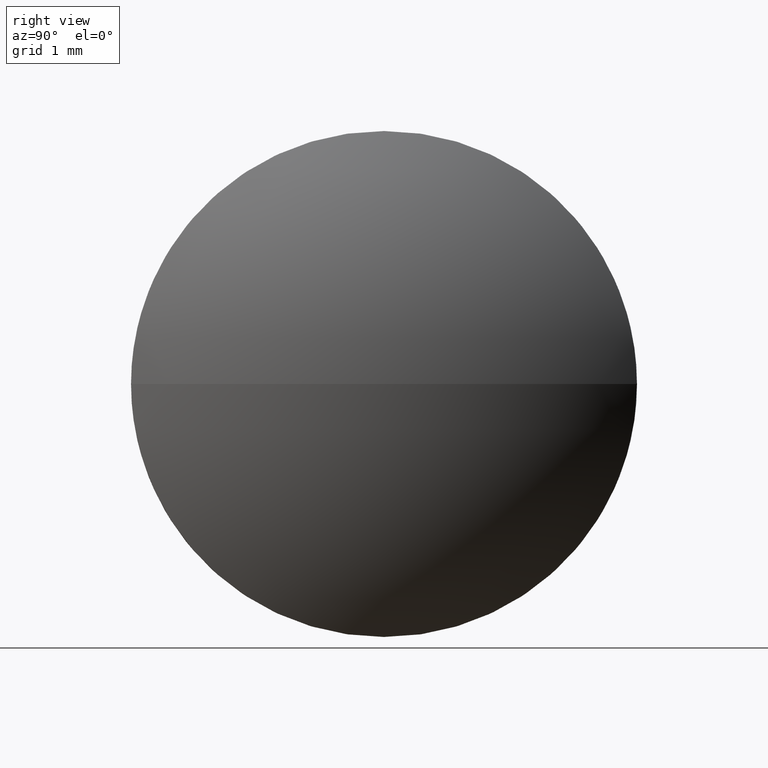
[diagram: clean part render]
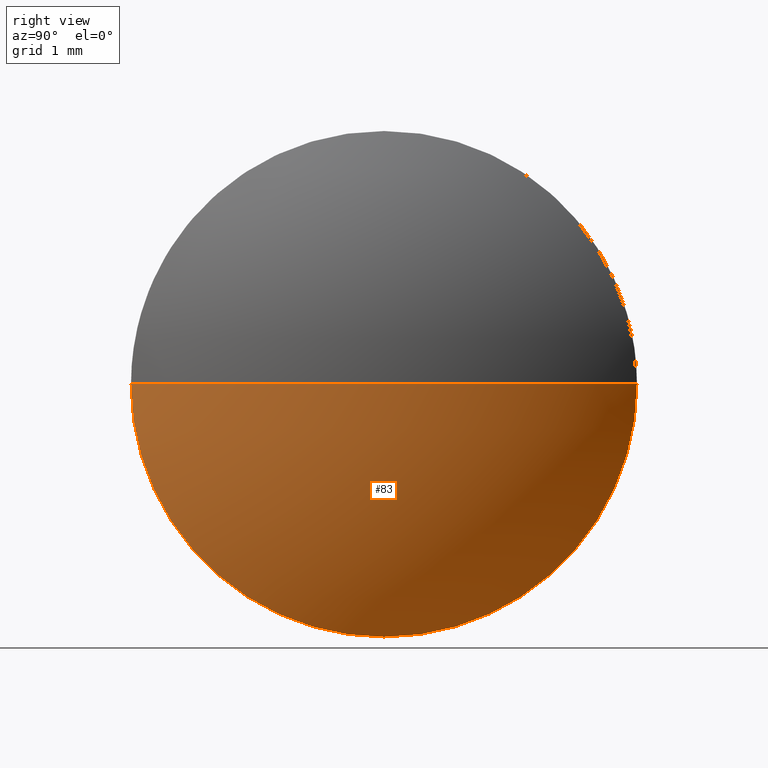
[diagram: same view with one face highlighted and labeled with its STEP entity id]
A machine part, right view. The second image highlights one B-rep face of the part: STEP entity #83.
In plain terms, the highlighted spherical surface has radius 4.1402 mm.
Its self-contained STEP definition (entity closure, byte-faithful):
#6 = DIRECTION ( 'NONE',  ( 0.0000000000000000000, 1.000000000000000000, 1.224646799147350500E-016 ) ) ;
#8 = CARTESIAN_POINT ( 'NONE',  ( 522.2897579000514300, 146.8657861925488500, 0.0000000000000000000 ) ) ;
#13 = EDGE_CURVE ( 'NONE', #143, #24, #42, .T. ) ;
#19 = CARTESIAN_POINT ( 'NONE',  ( 521.4497579000514000, 146.8657861925488500, -2.500000000000002200 ) ) ;
#23 = DIRECTION ( 'NONE',  ( 0.0000000000000000000, 1.224646799147353200E-016, -1.000000000000000000 ) ) ;
#24 = VERTEX_POINT ( 'NONE', #46 ) ;
#27 = VERTEX_POINT ( 'NONE', #19 ) ;
#29 = CIRCLE ( 'NONE', #180, 2.500000000000002200 ) ;
#35 = DIRECTION ( 'NONE',  ( -1.000000000000000000, -0.0000000000000000000, -0.0000000000000000000 ) ) ;
#42 = CIRCLE ( 'NONE', #100, 4.140238095238113500 ) ;
#43 = EDGE_LOOP ( 'NONE', ( #131, #80, #163, #117 ) ) ;
#46 = CARTESIAN_POINT ( 'NONE',  ( 521.4497579000514000, 149.3657861925488500, 0.0000000000000000000 ) ) ;
#51 = CARTESIAN_POINT ( 'NONE',  ( 521.4497579000514000, 146.8657861925488500, 0.0000000000000000000 ) ) ;
#61 = DIRECTION ( 'NONE',  ( 0.0000000000000000000, 0.0000000000000000000, 1.000000000000000000 ) ) ;
#64 = SPHERICAL_SURFACE ( 'NONE', #169, 4.140238095238132100 ) ;
#70 = DIRECTION ( 'NONE',  ( 1.000000000000000000, 0.0000000000000000000, 0.0000000000000000000 ) ) ;
#71 = FACE_OUTER_BOUND ( 'NONE', #43, .T. ) ;
#74 = EDGE_CURVE ( 'NONE', #27, #85, #29, .T. ) ;
#77 = CARTESIAN_POINT ( 'NONE',  ( 521.4497579000514000, 144.3657861925488500, -3.061616997868367400E-016 ) ) ;
#80 = ORIENTED_EDGE ( 'NONE', *, *, #183, .T. ) ;
#81 = CARTESIAN_POINT ( 'NONE',  ( 518.1495198048132800, 146.8657861925488500, 0.0000000000000000000 ) ) ;
#83 = ADVANCED_FACE ( 'NONE', ( #71 ), #64, .T. ) ;
#85 = VERTEX_POINT ( 'NONE', #77 ) ;
#90 = CARTESIAN_POINT ( 'NONE',  ( 518.1495198048132800, 146.8657861925488500, 0.0000000000000000000 ) ) ;
#94 = CARTESIAN_POINT ( 'NONE',  ( 518.1495198048132800, 146.8657861925488500, 0.0000000000000000000 ) ) ;
#98 = DIRECTION ( 'NONE',  ( -0.0000000000000000000, 0.0000000000000000000, -1.000000000000000000 ) ) ;
#100 = AXIS2_PLACEMENT_3D ( 'NONE', #94, #151, #70 ) ;
#117 = ORIENTED_EDGE ( 'NONE', *, *, #140, .F. ) ;
#119 = CIRCLE ( 'NONE', #139, 2.500000000000002200 ) ;
#122 = DIRECTION ( 'NONE',  ( 0.0000000000000000000, 1.000000000000000000, 0.0000000000000000000 ) ) ;
#126 = CARTESIAN_POINT ( 'NONE',  ( 521.4497579000514000, 146.8657861925488500, 0.0000000000000000000 ) ) ;
#131 = ORIENTED_EDGE ( 'NONE', *, *, #13, .F. ) ;
#135 = CIRCLE ( 'NONE', #164, 4.140238095238141000 ) ;
#138 = DIRECTION ( 'NONE',  ( 0.0000000000000000000, 0.0000000000000000000, 1.000000000000000000 ) ) ;
#139 = AXIS2_PLACEMENT_3D ( 'NONE', #126, #35, #138 ) ;
#140 = EDGE_CURVE ( 'NONE', #24, #27, #119, .T. ) ;
#143 = VERTEX_POINT ( 'NONE', #8 ) ;
#151 = DIRECTION ( 'NONE',  ( -0.0000000000000000000, 0.0000000000000000000, 1.000000000000000000 ) ) ;
#153 = DIRECTION ( 'NONE',  ( -1.000000000000000000, -0.0000000000000000000, -0.0000000000000000000 ) ) ;
#163 = ORIENTED_EDGE ( 'NONE', *, *, #74, .F. ) ;
#164 = AXIS2_PLACEMENT_3D ( 'NONE', #90, #23, #6 ) ;
#169 = AXIS2_PLACEMENT_3D ( 'NONE', #81, #98, #122 ) ;
#180 = AXIS2_PLACEMENT_3D ( 'NONE', #51, #153, #61 ) ;
#183 = EDGE_CURVE ( 'NONE', #143, #85, #135, .T. ) ;